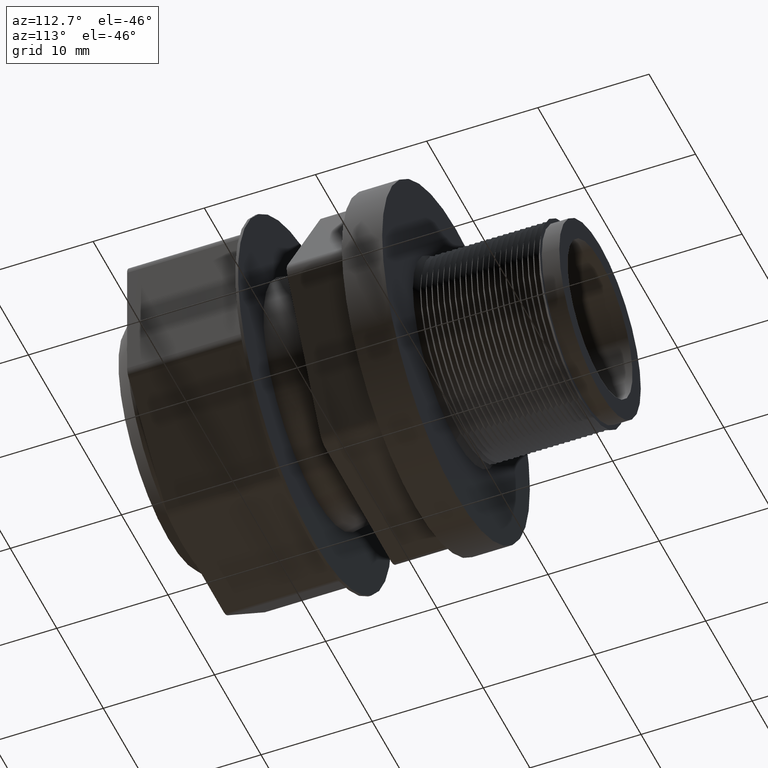
[diagram: clean part render]
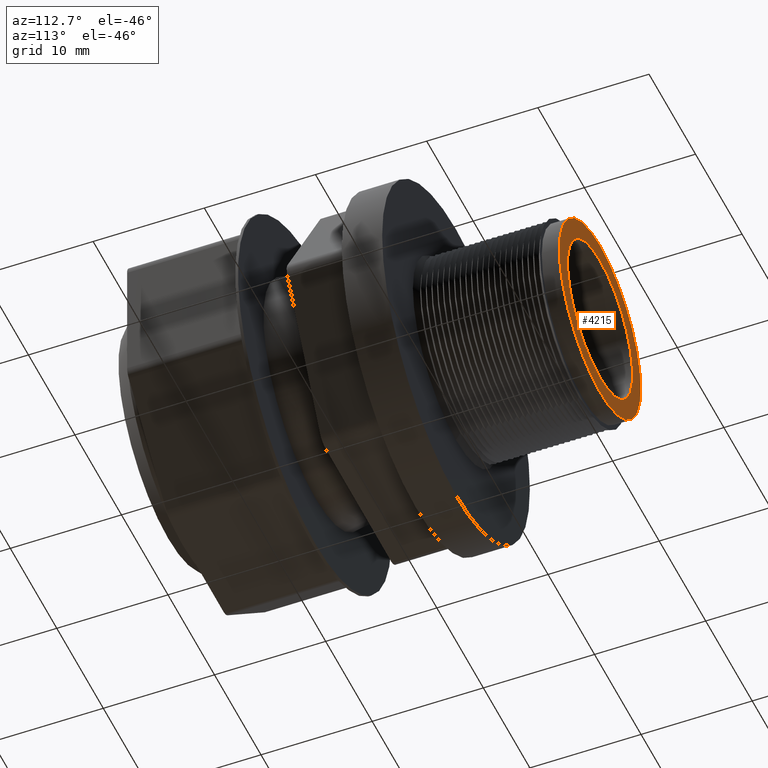
[diagram: same view with one face highlighted and labeled with its STEP entity id]
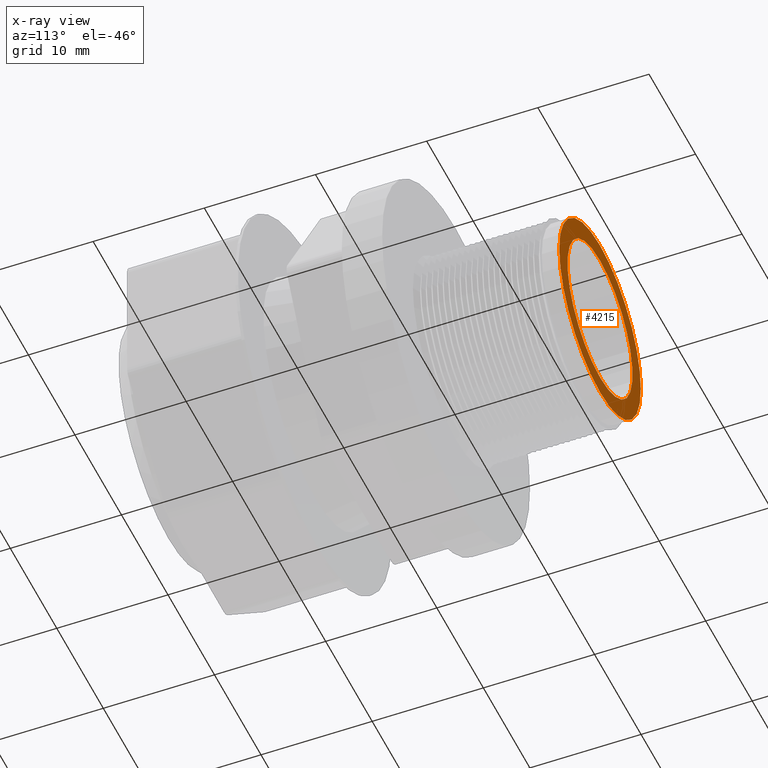
[diagram: x-ray of the same camera — body ghosted, the highlighted face saturated]
A machine part, auxiliary view. The second image highlights one B-rep face of the part: STEP entity #4215.
The next image is the same camera in x-ray: the body ghosted, the highlighted face saturated — about 0% of this face is hidden behind the body in this view.
In plain terms, the highlighted planar face has unit normal (-0, 1, 0).
Its self-contained STEP definition (entity closure, byte-faithful):
#2861 = CARTESIAN_POINT ( 'NONE',  ( 3.367778697655221300E-017, 1.530000000000000200, -0.2750000000000000200 ) ) ;
#2899 = CARTESIAN_POINT ( 'NONE',  ( 4.223307848060128100E-017, 1.530000000000000200, -0.3448592566444921300 ) ) ;
#2917 = CARTESIAN_POINT ( 'NONE',  ( 0.0000000000000000000, 1.530000000000000200, 0.2750000000000000200 ) ) ;
#2918 = DIRECTION ( 'NONE',  ( 0.0000000000000000000, 0.0000000000000000000, 1.000000000000000000 ) ) ;
#2919 = DIRECTION ( 'NONE',  ( -0.0000000000000000000, 1.000000000000000000, -0.0000000000000000000 ) ) ;
#2920 = CARTESIAN_POINT ( 'NONE',  ( 0.0000000000000000000, 1.530000000000000200, 0.0000000000000000000 ) ) ;
#2921 = AXIS2_PLACEMENT_3D ( 'NONE', #2920, #2919, #2918 ) ;
#2922 = CIRCLE ( 'NONE', #2921, 0.2750000000000000200 ) ;
#3026 = CARTESIAN_POINT ( 'NONE',  ( 0.0000000000000000000, 1.530000000000000200, 0.3448592566444921300 ) ) ;
#3027 = DIRECTION ( 'NONE',  ( 0.0000000000000000000, 0.0000000000000000000, 1.000000000000000000 ) ) ;
#3028 = DIRECTION ( 'NONE',  ( -0.0000000000000000000, 1.000000000000000000, -0.0000000000000000000 ) ) ;
#3029 = CARTESIAN_POINT ( 'NONE',  ( 0.0000000000000000000, 1.530000000000000200, 0.0000000000000000000 ) ) ;
#3030 = AXIS2_PLACEMENT_3D ( 'NONE', #3029, #3028, #3027 ) ;
#3031 = CIRCLE ( 'NONE', #3030, 0.3448592566444921300 ) ;
#3145 = CARTESIAN_POINT ( 'NONE',  ( -0.3448592566444921300, 1.530000000000000200, 0.0000000000000000000 ) ) ;
#3146 = PLANE ( 'NONE',  #3207 ) ;
#3147 = FACE_BOUND ( 'NONE', #4218, .T. ) ;
#3148 = FACE_OUTER_BOUND ( 'NONE', #4160, .T. ) ;
#3149 = DIRECTION ( 'NONE',  ( 0.0000000000000000000, 0.0000000000000000000, 1.000000000000000000 ) ) ;
#3150 = DIRECTION ( 'NONE',  ( -0.0000000000000000000, 1.000000000000000000, -0.0000000000000000000 ) ) ;
#3151 = CARTESIAN_POINT ( 'NONE',  ( 0.0000000000000000000, 1.530000000000000200, 0.0000000000000000000 ) ) ;
#3152 = AXIS2_PLACEMENT_3D ( 'NONE', #3151, #3150, #3149 ) ;
#3153 = CIRCLE ( 'NONE', #3152, 0.3448592566444921300 ) ;
#3201 = DIRECTION ( 'NONE',  ( 0.0000000000000000000, 0.0000000000000000000, 1.000000000000000000 ) ) ;
#3202 = DIRECTION ( 'NONE',  ( -0.0000000000000000000, 1.000000000000000000, -0.0000000000000000000 ) ) ;
#3203 = AXIS2_PLACEMENT_3D ( 'NONE', #3208, #3202, #3201 ) ;
#3204 = CIRCLE ( 'NONE', #3203, 0.2750000000000000200 ) ;
#3205 = DIRECTION ( 'NONE',  ( 0.0000000000000000000, 0.0000000000000000000, 1.000000000000000000 ) ) ;
#3206 = DIRECTION ( 'NONE',  ( -0.0000000000000000000, 1.000000000000000000, 0.0000000000000000000 ) ) ;
#3207 = AXIS2_PLACEMENT_3D ( 'NONE', #3145, #3206, #3205 ) ;
#3208 = CARTESIAN_POINT ( 'NONE',  ( 0.0000000000000000000, 1.530000000000000200, 0.0000000000000000000 ) ) ;
#4065 = VERTEX_POINT ( 'NONE', #2861 ) ;
#4067 = EDGE_CURVE ( 'NONE', #4065, #4068, #2922, .T. ) ;
#4068 = VERTEX_POINT ( 'NONE', #2917 ) ;
#4077 = VERTEX_POINT ( 'NONE', #2899 ) ;
#4138 = EDGE_CURVE ( 'NONE', #4139, #4077, #3031, .T. ) ;
#4139 = VERTEX_POINT ( 'NONE', #3026 ) ;
#4160 = EDGE_LOOP ( 'NONE', ( #4216, #4217 ) ) ;
#4214 = EDGE_CURVE ( 'NONE', #4077, #4139, #3153, .T. ) ;
#4215 = ADVANCED_FACE ( 'NONE', ( #3148, #3147 ), #3146, .T. ) ;
#4216 = ORIENTED_EDGE ( 'NONE', *, *, #4138, .T. ) ;
#4217 = ORIENTED_EDGE ( 'NONE', *, *, #4214, .T. ) ;
#4218 = EDGE_LOOP ( 'NONE', ( #4219, #4221 ) ) ;
#4219 = ORIENTED_EDGE ( 'NONE', *, *, #4220, .F. ) ;
#4220 = EDGE_CURVE ( 'NONE', #4068, #4065, #3204, .T. ) ;
#4221 = ORIENTED_EDGE ( 'NONE', *, *, #4067, .F. ) ;